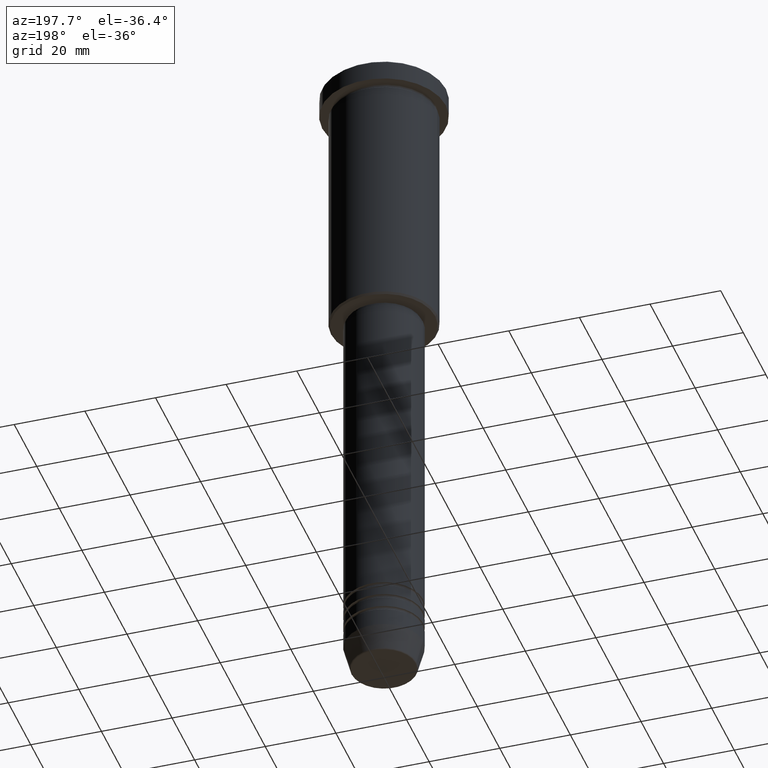
[diagram: clean part render]
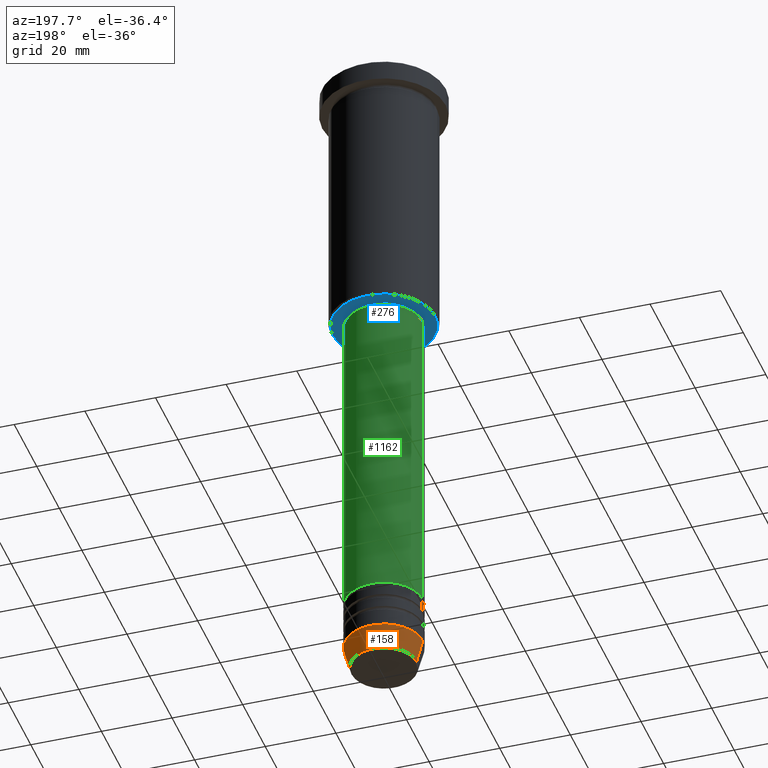
[diagram: same view with three faces highlighted in distinct colors, each labeled with its STEP entity id]
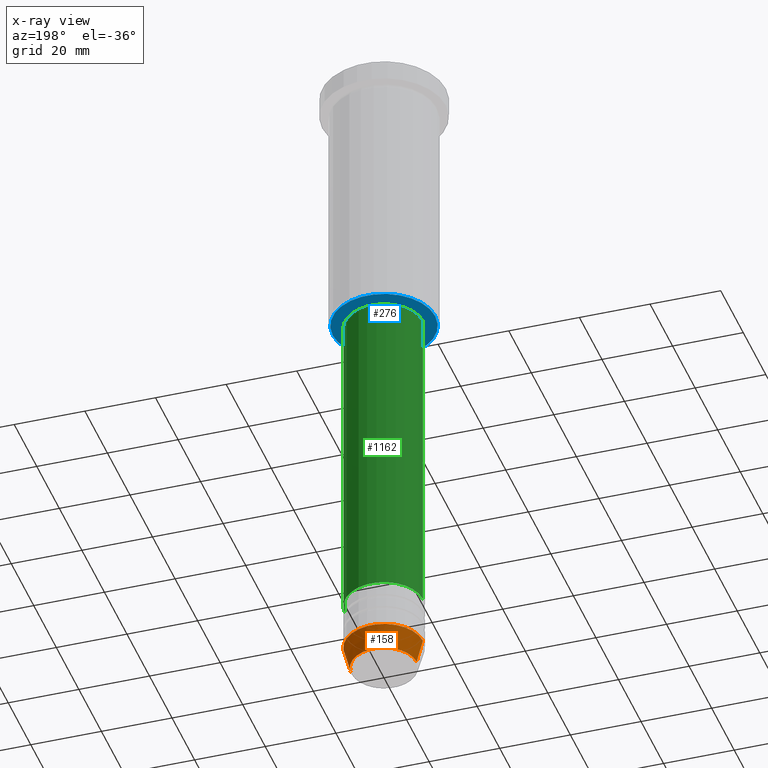
[diagram: x-ray of the same camera — body ghosted, the three highlighted faces saturated]
A machine part, auxiliary view with three faces highlighted in distinct colors.
The next image is the same camera in x-ray (body ghosted, the three faces saturated) — at least one of them is partly hidden behind the body in this view.
Their STEP definitions:

[orange] entity #158 — the highlighted conical surface has half-angle 15 deg.
#1 = ORIENTED_EDGE ( 'NONE', *, *, #124, .T. ) ;
#27 = DIRECTION ( 'NONE',  ( 0.2588190451025213501, 0.000000000000000000, 0.9659258262890680902 ) ) ;
#41 = CARTESIAN_POINT ( 'NONE',  ( -9.223655072137189492, 1.238341722557647202E-15, -190.6294095225512422 ) ) ;
#48 = CIRCLE ( 'NONE', #505, 11.00000000000000000 ) ;
#124 = EDGE_CURVE ( 'NONE', #670, #556, #899, .T. ) ;
#147 = VECTOR ( 'NONE', #260, 1000.000000000000000 ) ;
#151 = DIRECTION ( 'NONE',  ( -0.000000000000000000, -0.000000000000000000, 1.000000000000000000 ) ) ;
#158 = ADVANCED_FACE ( 'NONE', ( #737 ), #1019, .T. ) ;
#260 = DIRECTION ( 'NONE',  ( -0.2588190451025213501, 3.169619151431772337E-17, 0.9659258262890680902 ) ) ;
#279 = DIRECTION ( 'NONE',  ( -0.000000000000000000, -0.000000000000000000, 1.000000000000000000 ) ) ;
#288 = LINE ( 'NONE', #821, #1094 ) ;
#328 = CARTESIAN_POINT ( 'NONE',  ( 9.223655072137189492, 0.000000000000000000, -190.6294095225512422 ) ) ;
#362 = ORIENTED_EDGE ( 'NONE', *, *, #857, .F. ) ;
#390 = AXIS2_PLACEMENT_3D ( 'NONE', #555, #918, #982 ) ;
#472 = ORIENTED_EDGE ( 'NONE', *, *, #799, .F. ) ;
#505 = AXIS2_PLACEMENT_3D ( 'NONE', #1148, #151, #513 ) ;
#513 = DIRECTION ( 'NONE',  ( 1.000000000000000000, 0.000000000000000000, 0.000000000000000000 ) ) ;
#528 = CARTESIAN_POINT ( 'NONE',  ( 0.000000000000000000, 0.000000000000000000, -184.0000000000000000 ) ) ;
#540 = AXIS2_PLACEMENT_3D ( 'NONE', #528, #279, #709 ) ;
#555 = CARTESIAN_POINT ( 'NONE',  ( 0.000000000000000000, 0.000000000000000000, -190.6294095225512422 ) ) ;
#556 = VERTEX_POINT ( 'NONE', #41 ) ;
#585 = CARTESIAN_POINT ( 'NONE',  ( 11.00000000000000000, 0.000000000000000000, -184.0000000000000000 ) ) ;
#597 = CARTESIAN_POINT ( 'NONE',  ( -11.00000000000000000, 1.347111479062088405E-15, -184.0000000000000000 ) ) ;
#670 = VERTEX_POINT ( 'NONE', #328 ) ;
#709 = DIRECTION ( 'NONE',  ( 1.000000000000000000, 0.000000000000000000, 0.000000000000000000 ) ) ;
#711 = LINE ( 'NONE', #967, #147 ) ;
#737 = FACE_OUTER_BOUND ( 'NONE', #991, .T. ) ;
#740 = VERTEX_POINT ( 'NONE', #597 ) ;
#799 = EDGE_CURVE ( 'NONE', #996, #740, #48, .T. ) ;
#821 = CARTESIAN_POINT ( 'NONE',  ( 11.00000000000000000, 0.000000000000000000, -184.0000000000000000 ) ) ;
#857 = EDGE_CURVE ( 'NONE', #670, #996, #288, .T. ) ;
#899 = CIRCLE ( 'NONE', #390, 9.223655072137189492 ) ;
#918 = DIRECTION ( 'NONE',  ( -0.000000000000000000, -0.000000000000000000, 1.000000000000000000 ) ) ;
#967 = CARTESIAN_POINT ( 'NONE',  ( -11.00000000000000000, 1.347111479062088405E-15, -184.0000000000000000 ) ) ;
#982 = DIRECTION ( 'NONE',  ( 1.000000000000000000, 0.000000000000000000, 0.000000000000000000 ) ) ;
#991 = EDGE_LOOP ( 'NONE', ( #1, #1093, #472, #362 ) ) ;
#996 = VERTEX_POINT ( 'NONE', #585 ) ;
#1019 = CONICAL_SURFACE ( 'NONE', #540, 11.00000000000000000, 0.2617993877991500740 ) ;
#1093 = ORIENTED_EDGE ( 'NONE', *, *, #1181, .T. ) ;
#1094 = VECTOR ( 'NONE', #27, 1000.000000000000000 ) ;
#1148 = CARTESIAN_POINT ( 'NONE',  ( 0.000000000000000000, 0.000000000000000000, -184.0000000000000000 ) ) ;
#1181 = EDGE_CURVE ( 'NONE', #556, #740, #711, .T. ) ;

[blue] entity #276 — the highlighted planar face has unit normal (0, 0, -1).
#46 = CIRCLE ( 'NONE', #864, 10.49999999999999822 ) ;
#157 = FACE_BOUND ( 'NONE', #473, .T. ) ;
#160 = DIRECTION ( 'NONE',  ( -1.000000000000000000, 0.000000000000000000, 0.000000000000000000 ) ) ;
#186 = VERTEX_POINT ( 'NONE', #1167 ) ;
#198 = CIRCLE ( 'NONE', #878, 14.49999999999998401 ) ;
#227 = DIRECTION ( 'NONE',  ( -0.000000000000000000, -0.000000000000000000, 1.000000000000000000 ) ) ;
#276 = ADVANCED_FACE ( 'NONE', ( #339, #157 ), #437, .T. ) ;
#278 = ORIENTED_EDGE ( 'NONE', *, *, #569, .T. ) ;
#305 = ORIENTED_EDGE ( 'NONE', *, *, #809, .T. ) ;
#338 = CARTESIAN_POINT ( 'NONE',  ( 0.000000000000000000, 0.000000000000000000, -76.00000000000001421 ) ) ;
#339 = FACE_OUTER_BOUND ( 'NONE', #1034, .T. ) ;
#370 = AXIS2_PLACEMENT_3D ( 'NONE', #803, #889, #1163 ) ;
#399 = CARTESIAN_POINT ( 'NONE',  ( 0.000000000000000000, 0.000000000000000000, -76.00000000000001421 ) ) ;
#417 = DIRECTION ( 'NONE',  ( -0.000000000000000000, -0.000000000000000000, 1.000000000000000000 ) ) ;
#437 = PLANE ( 'NONE',  #370 ) ;
#466 = AXIS2_PLACEMENT_3D ( 'NONE', #338, #971, #509 ) ;
#473 = EDGE_LOOP ( 'NONE', ( #278, #927 ) ) ;
#489 = DIRECTION ( 'NONE',  ( 1.000000000000000000, 0.000000000000000000, 0.000000000000000000 ) ) ;
#509 = DIRECTION ( 'NONE',  ( -1.000000000000000000, 0.000000000000000000, 0.000000000000000000 ) ) ;
#558 = EDGE_CURVE ( 'NONE', #722, #914, #46, .T. ) ;
#569 = EDGE_CURVE ( 'NONE', #914, #722, #1171, .T. ) ;
#584 = CARTESIAN_POINT ( 'NONE',  ( 0.000000000000000000, 0.000000000000000000, -76.00000000000001421 ) ) ;
#653 = AXIS2_PLACEMENT_3D ( 'NONE', #584, #417, #851 ) ;
#671 = VERTEX_POINT ( 'NONE', #694 ) ;
#694 = CARTESIAN_POINT ( 'NONE',  ( -14.49999999999998401, 1.806354028742345013E-15, -76.00000000000001421 ) ) ;
#722 = VERTEX_POINT ( 'NONE', #1178 ) ;
#796 = CIRCLE ( 'NONE', #466, 14.49999999999998401 ) ;
#803 = CARTESIAN_POINT ( 'NONE',  ( 0.000000000000000000, 15.00000000000000000, -76.00000000000001421 ) ) ;
#809 = EDGE_CURVE ( 'NONE', #671, #186, #198, .T. ) ;
#851 = DIRECTION ( 'NONE',  ( 1.000000000000000000, 0.000000000000000000, 0.000000000000000000 ) ) ;
#864 = AXIS2_PLACEMENT_3D ( 'NONE', #399, #227, #489 ) ;
#878 = AXIS2_PLACEMENT_3D ( 'NONE', #1065, #969, #160 ) ;
#889 = DIRECTION ( 'NONE',  ( 0.000000000000000000, 0.000000000000000000, -1.000000000000000000 ) ) ;
#914 = VERTEX_POINT ( 'NONE', #1100 ) ;
#927 = ORIENTED_EDGE ( 'NONE', *, *, #558, .T. ) ;
#969 = DIRECTION ( 'NONE',  ( 0.000000000000000000, 0.000000000000000000, -1.000000000000000000 ) ) ;
#971 = DIRECTION ( 'NONE',  ( 0.000000000000000000, 0.000000000000000000, -1.000000000000000000 ) ) ;
#1034 = EDGE_LOOP ( 'NONE', ( #1111, #305 ) ) ;
#1065 = CARTESIAN_POINT ( 'NONE',  ( 0.000000000000000000, 0.000000000000000000, -76.00000000000001421 ) ) ;
#1100 = CARTESIAN_POINT ( 'NONE',  ( 10.49999999999999822, 0.000000000000000000, -76.00000000000001421 ) ) ;
#1111 = ORIENTED_EDGE ( 'NONE', *, *, #1161, .T. ) ;
#1161 = EDGE_CURVE ( 'NONE', #186, #671, #796, .T. ) ;
#1163 = DIRECTION ( 'NONE',  ( -1.000000000000000000, 0.000000000000000000, -0.000000000000000000 ) ) ;
#1167 = CARTESIAN_POINT ( 'NONE',  ( 14.49999999999998401, 0.000000000000000000, -76.00000000000001421 ) ) ;
#1171 = CIRCLE ( 'NONE', #653, 10.49999999999999822 ) ;
#1178 = CARTESIAN_POINT ( 'NONE',  ( -10.49999999999999822, 1.285879139104720633E-15, -76.00000000000001421 ) ) ;

[green] entity #1162 — the highlighted cylindrical surface (partial cylindrical patch) has radius 11 mm, axis along (-0, -0, 1).
#49 = CIRCLE ( 'NONE', #1117, 11.00000000000000000 ) ;
#57 = DIRECTION ( 'NONE',  ( 1.000000000000000000, 0.000000000000000000, 0.000000000000000000 ) ) ;
#68 = CARTESIAN_POINT ( 'NONE',  ( 11.00000000000000000, 0.000000000000000000, -169.9999999999999147 ) ) ;
#73 = LINE ( 'NONE', #567, #102 ) ;
#102 = VECTOR ( 'NONE', #1026, 1000.000000000000000 ) ;
#123 = AXIS2_PLACEMENT_3D ( 'NONE', #262, #617, #989 ) ;
#152 = DIRECTION ( 'NONE',  ( -0.000000000000000000, -0.000000000000000000, 1.000000000000000000 ) ) ;
#168 = CYLINDRICAL_SURFACE ( 'NONE', #656, 11.00000000000000000 ) ;
#171 = ORIENTED_EDGE ( 'NONE', *, *, #308, .T. ) ;
#182 = EDGE_LOOP ( 'NONE', ( #171, #682, #638, #313 ) ) ;
#229 = CARTESIAN_POINT ( 'NONE',  ( 0.000000000000000000, 0.000000000000000000, -77.00000000000004263 ) ) ;
#262 = CARTESIAN_POINT ( 'NONE',  ( 0.000000000000000000, 0.000000000000000000, -169.9999999999999147 ) ) ;
#308 = EDGE_CURVE ( 'NONE', #1165, #962, #464, .T. ) ;
#313 = ORIENTED_EDGE ( 'NONE', *, *, #424, .F. ) ;
#389 = VERTEX_POINT ( 'NONE', #1099 ) ;
#424 = EDGE_CURVE ( 'NONE', #1165, #1020, #73, .T. ) ;
#464 = CIRCLE ( 'NONE', #123, 11.00000000000000000 ) ;
#567 = CARTESIAN_POINT ( 'NONE',  ( 11.00000000000000000, 0.000000000000000000, 0.000000000000000000 ) ) ;
#617 = DIRECTION ( 'NONE',  ( -0.000000000000000000, -0.000000000000000000, 1.000000000000000000 ) ) ;
#638 = ORIENTED_EDGE ( 'NONE', *, *, #1053, .F. ) ;
#656 = AXIS2_PLACEMENT_3D ( 'NONE', #881, #152, #57 ) ;
#660 = CARTESIAN_POINT ( 'NONE',  ( 11.00000000000000000, 0.000000000000000000, -77.00000000000004263 ) ) ;
#682 = ORIENTED_EDGE ( 'NONE', *, *, #701, .T. ) ;
#687 = DIRECTION ( 'NONE',  ( -0.000000000000000000, -0.000000000000000000, 1.000000000000000000 ) ) ;
#699 = FACE_OUTER_BOUND ( 'NONE', #182, .T. ) ;
#701 = EDGE_CURVE ( 'NONE', #962, #389, #704, .T. ) ;
#704 = LINE ( 'NONE', #980, #975 ) ;
#881 = CARTESIAN_POINT ( 'NONE',  ( 0.000000000000000000, 0.000000000000000000, 0.000000000000000000 ) ) ;
#916 = CARTESIAN_POINT ( 'NONE',  ( -11.00000000000000000, 1.347111479062088405E-15, -169.9999999999999147 ) ) ;
#962 = VERTEX_POINT ( 'NONE', #916 ) ;
#975 = VECTOR ( 'NONE', #1160, 1000.000000000000000 ) ;
#980 = CARTESIAN_POINT ( 'NONE',  ( -11.00000000000000000, 1.347111479062088405E-15, 0.000000000000000000 ) ) ;
#989 = DIRECTION ( 'NONE',  ( 1.000000000000000000, 0.000000000000000000, 0.000000000000000000 ) ) ;
#1020 = VERTEX_POINT ( 'NONE', #660 ) ;
#1026 = DIRECTION ( 'NONE',  ( -0.000000000000000000, -0.000000000000000000, 1.000000000000000000 ) ) ;
#1053 = EDGE_CURVE ( 'NONE', #1020, #389, #49, .T. ) ;
#1055 = DIRECTION ( 'NONE',  ( 1.000000000000000000, 0.000000000000000000, 0.000000000000000000 ) ) ;
#1099 = CARTESIAN_POINT ( 'NONE',  ( -11.00000000000000000, 1.347111479062088405E-15, -77.00000000000004263 ) ) ;
#1117 = AXIS2_PLACEMENT_3D ( 'NONE', #229, #687, #1055 ) ;
#1160 = DIRECTION ( 'NONE',  ( -0.000000000000000000, -0.000000000000000000, 1.000000000000000000 ) ) ;
#1162 = ADVANCED_FACE ( 'NONE', ( #699 ), #168, .T. ) ;
#1165 = VERTEX_POINT ( 'NONE', #68 ) ;